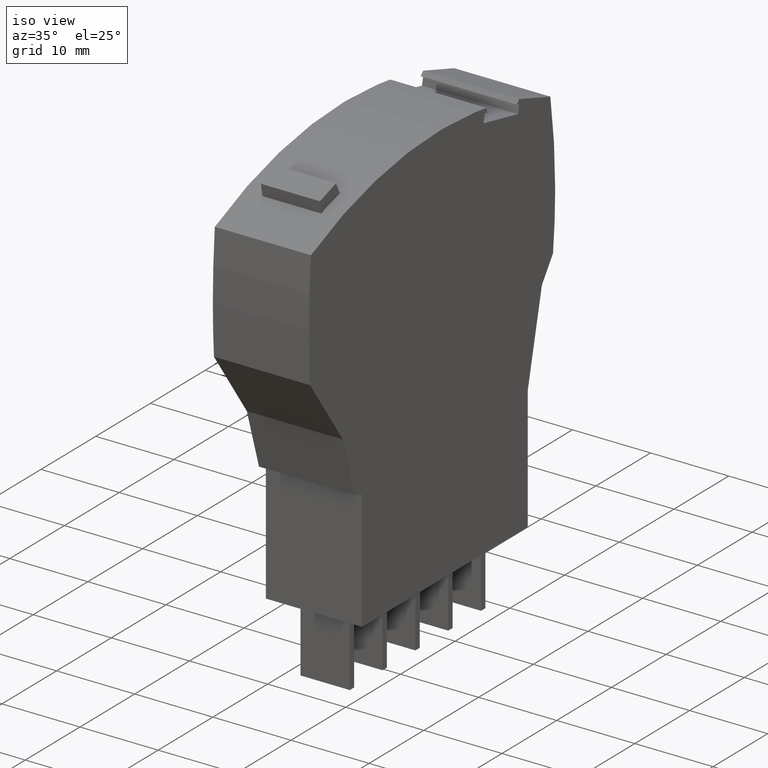
[diagram: clean part render]
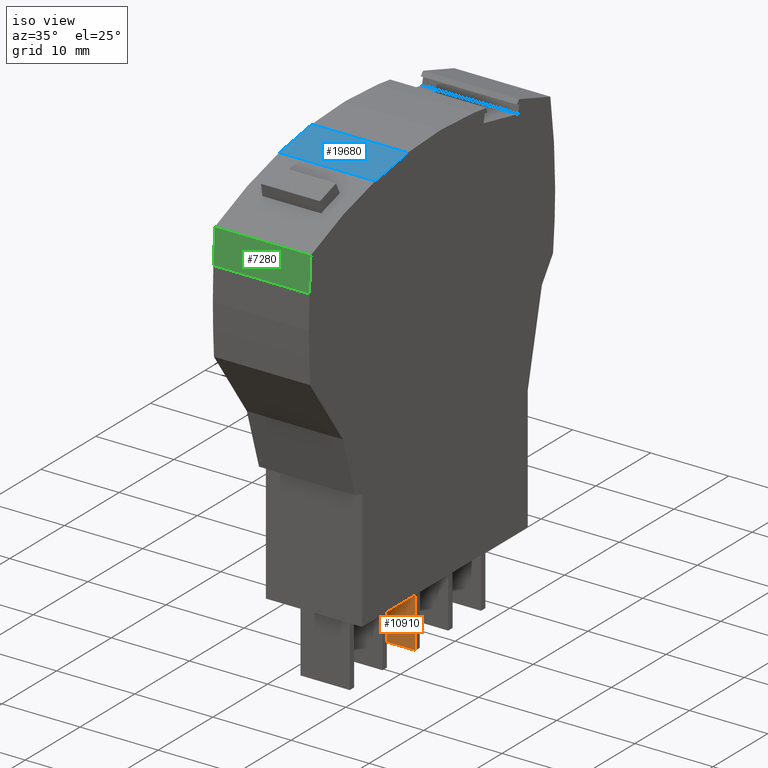
[diagram: same view with three faces highlighted in distinct colors, each labeled with its STEP entity id]
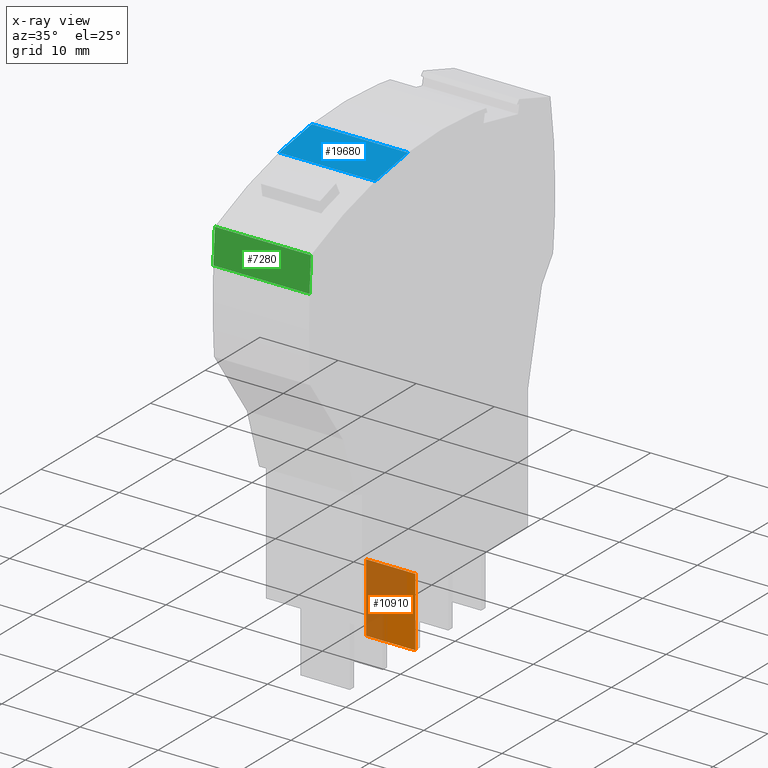
[diagram: x-ray of the same camera — body ghosted, the three highlighted faces saturated]
A machine part, iso view with three faces highlighted in distinct colors.
The next image is the same camera in x-ray (body ghosted, the three faces saturated) — at least one of them is partly hidden behind the body in this view.
Their STEP definitions:

[orange] entity #10910 — the highlighted planar face has unit normal (0, -1, -0).
#9570=CARTESIAN_POINT('',(0.582167226119392,-9.93357864376885,
50.6450000001206));
#9580=DIRECTION('',(-1.11123366772477E-12,-1.,0.));
#9590=VECTOR('',#9580,1.);
#9600=LINE('',#9570,#9590);
#9610=CARTESIAN_POINT('',(0.582167226118873,-10.4000000000038,
50.6450000001206));
#9620=VERTEX_POINT('',#9610);
#9630=CARTESIAN_POINT('',(0.582167226109039,-19.2500000000039,
50.6450000001206));
#9640=VERTEX_POINT('',#9630);
#9650=EDGE_CURVE('',#9620,#9640,#9600,.T.);
#10440=CARTESIAN_POINT('',(0.582167226109039,-19.2500000000039,
44.3450000001206));
#10450=DIRECTION('',(0.,0.,1.));
#10460=VECTOR('',#10450,1.);
#10470=LINE('',#10440,#10460);
#10480=CARTESIAN_POINT('',(0.582167226109039,-19.2500000000039,
44.3450000001206));
#10490=VERTEX_POINT('',#10480);
#10500=EDGE_CURVE('',#10490,#9640,#10470,.T.);
#10680=CARTESIAN_POINT('',(0.582167226119392,-9.93357864376885,
44.3450000001206));
#10690=DIRECTION('',(1.,-1.11123366772477E-12,0.));
#10700=DIRECTION('',(1.11123366772477E-12,1.,0.));
#10710=AXIS2_PLACEMENT_3D('',#10680,#10690,#10700);
#10720=PLANE('',#10710);
#10730=ORIENTED_EDGE('',*,*,#10500,.F.);
#10740=ORIENTED_EDGE('',*,*,#9650,.T.);
#10750=CARTESIAN_POINT('',(0.582167226118873,-10.4000000000038,
41.4450000001206));
#10760=DIRECTION('',(0.,0.,1.));
#10770=VECTOR('',#10760,1.);
#10780=LINE('',#10750,#10770);
#10790=CARTESIAN_POINT('',(0.582167226118873,-10.4000000000038,
44.3450000001206));
#10800=VERTEX_POINT('',#10790);
#10810=EDGE_CURVE('',#10800,#9620,#10780,.T.);
#10820=ORIENTED_EDGE('',*,*,#10810,.T.);
#10830=CARTESIAN_POINT('',(0.582167226119392,-9.93357864376885,
44.3450000001206));
#10840=DIRECTION('',(-1.11123366772477E-12,-1.,0.));
#10850=VECTOR('',#10840,1.);
#10860=LINE('',#10830,#10850);
#10870=EDGE_CURVE('',#10800,#10490,#10860,.T.);
#10880=ORIENTED_EDGE('',*,*,#10870,.F.);
#10890=EDGE_LOOP('',(#10880,#10820,#10740,#10730));
#10900=FACE_OUTER_BOUND('',#10890,.T.);
#10910=ADVANCED_FACE('',(#10900),#10720,.T.);

[blue] entity #19680 — the highlighted planar face has unit normal (0, -0.1654, 0.9862).
#2510=CARTESIAN_POINT('',(6.21214467764369,41.2649577289405,
53.6700000001206));
#2520=VERTEX_POINT('',#2510);
#2550=CARTESIAN_POINT('',(6.21214467764369,41.2649577289405,
53.6700000001206));
#2560=DIRECTION('',(0.986230427358959,-0.165376975880454,-0.));
#2570=VECTOR('',#2560,1.);
#2580=LINE('',#2550,#2570);
#2590=CARTESIAN_POINT('',(12.1685033001368,40.266160136693,
53.6700000001206));
#2600=VERTEX_POINT('',#2590);
#2610=EDGE_CURVE('',#2520,#2600,#2580,.T.);
#4490=CARTESIAN_POINT('',(12.1685033001367,40.266160136693,
41.3700000001206));
#4500=VERTEX_POINT('',#4490);
#4530=CARTESIAN_POINT('',(0.,42.3066470461843,41.3700000001206));
#4540=DIRECTION('',(0.986230427358959,-0.165376975880454,-0.));
#4550=VECTOR('',#4540,1.);
#4560=LINE('',#4530,#4550);
#4570=CARTESIAN_POINT('',(6.21214467764376,41.2649577289405,
41.3700000001206));
#4580=VERTEX_POINT('',#4570);
#4590=EDGE_CURVE('',#4580,#4500,#4560,.T.);
#19470=CARTESIAN_POINT('',(12.1685033001368,40.266160136693,
53.6700000001206));
#19480=DIRECTION('',(0.165376975880454,0.986230427358959,0.));
#19490=DIRECTION('',(0.986230427358959,-0.165376975880454,-0.));
#19500=AXIS2_PLACEMENT_3D('',#19470,#19480,#19490);
#19510=PLANE('',#19500);
#19520=CARTESIAN_POINT('',(6.21214467764376,41.2649577289405,0.));
#19530=DIRECTION('',(0.,0.,-1.));
#19540=VECTOR('',#19530,1.);
#19550=LINE('',#19520,#19540);
#19560=EDGE_CURVE('',#2520,#4580,#19550,.T.);
#19570=ORIENTED_EDGE('',*,*,#19560,.F.);
#19580=ORIENTED_EDGE('',*,*,#4590,.F.);
#19590=CARTESIAN_POINT('',(12.1685033001367,40.266160136693,0.));
#19600=DIRECTION('',(0.,0.,-1.));
#19610=VECTOR('',#19600,1.);
#19620=LINE('',#19590,#19610);
#19630=EDGE_CURVE('',#2600,#4500,#19620,.T.);
#19640=ORIENTED_EDGE('',*,*,#19630,.T.);
#19650=ORIENTED_EDGE('',*,*,#2610,.T.);
#19660=EDGE_LOOP('',(#19650,#19640,#19580,#19570));
#19670=FACE_OUTER_BOUND('',#19660,.T.);
#19680=ADVANCED_FACE('',(#19670),#19510,.T.);

[green] entity #7280 — the highlighted planar face has unit normal (0, -0.998, 0.0631).
#460=CARTESIAN_POINT('',(24.8300921415137,21.7394412001592,
53.6700000001206));
#470=DIRECTION('',(0.0630914327902522,-0.99800775102625,-0.));
#480=VECTOR('',#470,1.);
#490=LINE('',#460,#480);
#500=CARTESIAN_POINT('',(23.9179771729861,36.1676728658394,
53.6700000001206));
#510=VERTEX_POINT('',#500);
#520=CARTESIAN_POINT('',(24.1936064860476,31.8076483953254,
53.6700000001206));
#530=VERTEX_POINT('',#520);
#540=EDGE_CURVE('',#510,#530,#490,.T.);
#4250=CARTESIAN_POINT('',(24.1936064860476,31.8076483953254,
41.3700000001206));
#4260=VERTEX_POINT('',#4250);
#4290=CARTESIAN_POINT('',(24.8300921415137,21.7394412001592,
41.3700000001206));
#4300=DIRECTION('',(0.0630914327902522,-0.99800775102625,-0.));
#4310=VECTOR('',#4300,1.);
#4320=LINE('',#4290,#4310);
#4330=CARTESIAN_POINT('',(23.9179771729861,36.1676728658394,
41.3700000001206));
#4340=VERTEX_POINT('',#4330);
#4350=EDGE_CURVE('',#4340,#4260,#4320,.T.);
#6200=CARTESIAN_POINT('',(23.9179771729861,36.1676728658394,
41.4450000001206));
#6210=DIRECTION('',(0.,0.,-1.));
#6220=VECTOR('',#6210,1.);
#6230=LINE('',#6200,#6220);
#6240=EDGE_CURVE('',#510,#4340,#6230,.T.);
#7120=CARTESIAN_POINT('',(24.1936064860476,31.8076483953255,
53.5950000001206));
#7130=DIRECTION('',(0.99800775102625,0.0630914327902522,0.));
#7140=DIRECTION('',(0.0630914327902522,-0.99800775102625,-0.));
#7150=AXIS2_PLACEMENT_3D('',#7120,#7130,#7140);
#7160=PLANE('',#7150);
#7170=ORIENTED_EDGE('',*,*,#6240,.F.);
#7180=ORIENTED_EDGE('',*,*,#4350,.F.);
#7190=CARTESIAN_POINT('',(24.1936064860476,31.8076483953255,
53.5950000001206));
#7200=DIRECTION('',(0.,0.,-1.));
#7210=VECTOR('',#7200,1.);
#7220=LINE('',#7190,#7210);
#7230=EDGE_CURVE('',#530,#4260,#7220,.T.);
#7240=ORIENTED_EDGE('',*,*,#7230,.T.);
#7250=ORIENTED_EDGE('',*,*,#540,.T.);
#7260=EDGE_LOOP('',(#7250,#7240,#7180,#7170));
#7270=FACE_OUTER_BOUND('',#7260,.T.);
#7280=ADVANCED_FACE('',(#7270),#7160,.T.);